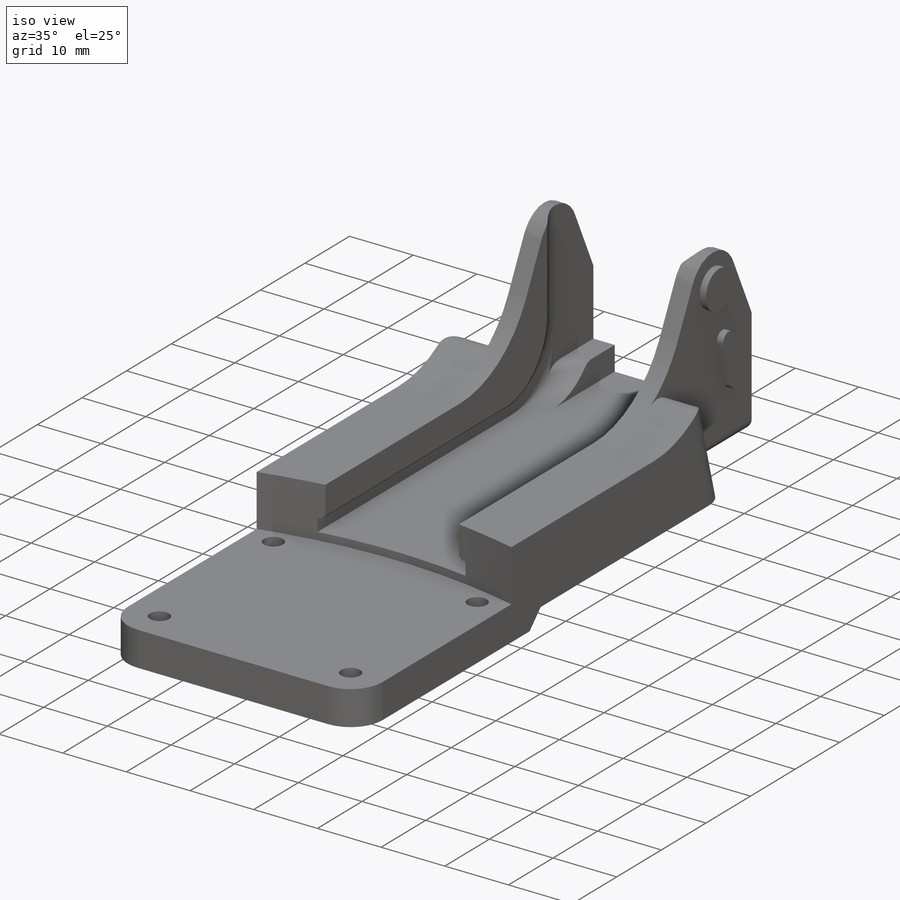
[diagram: iso view]
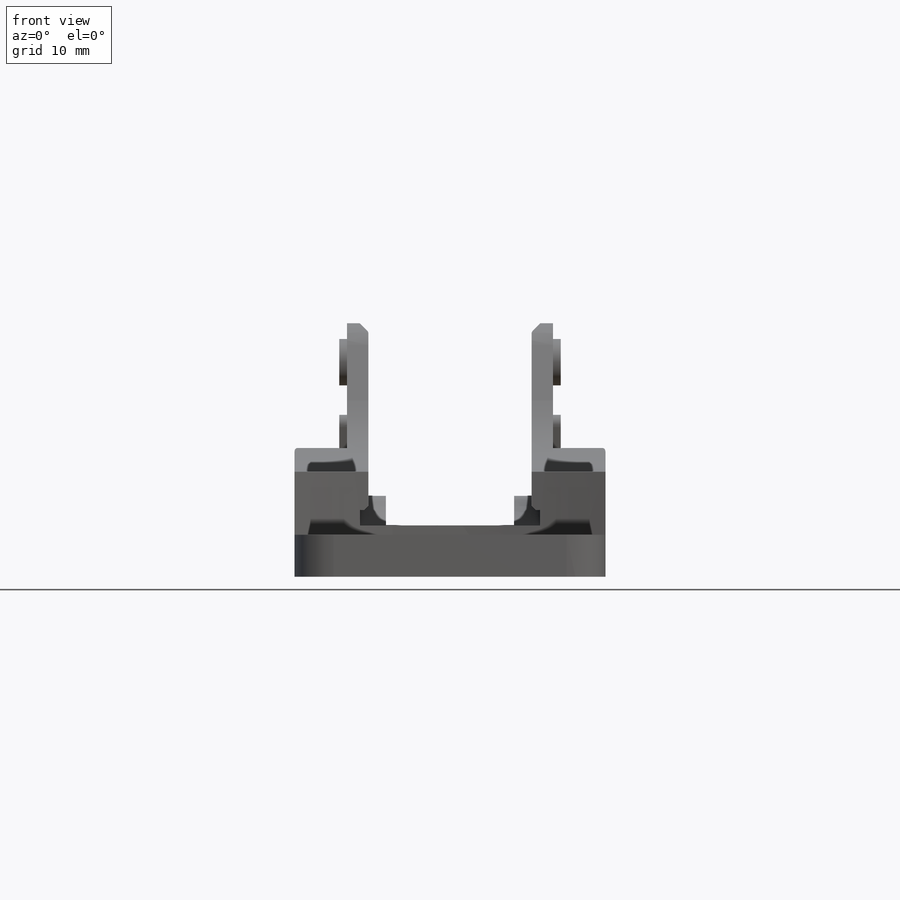
[diagram: front view]
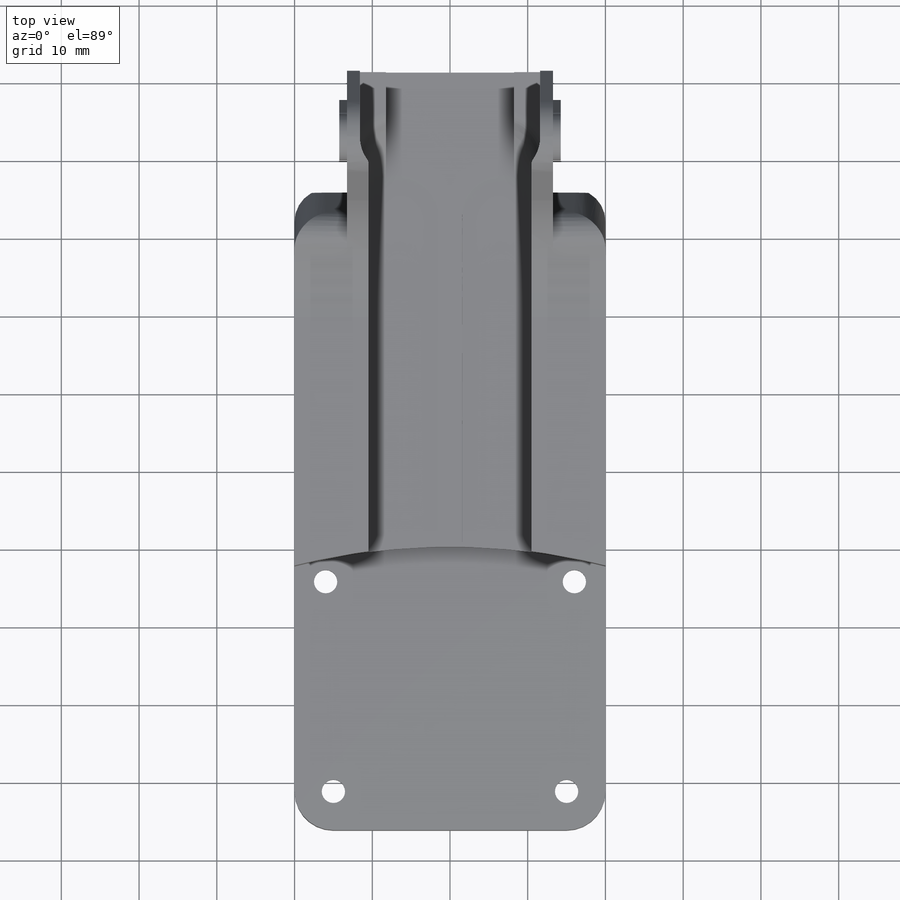
[diagram: top view]
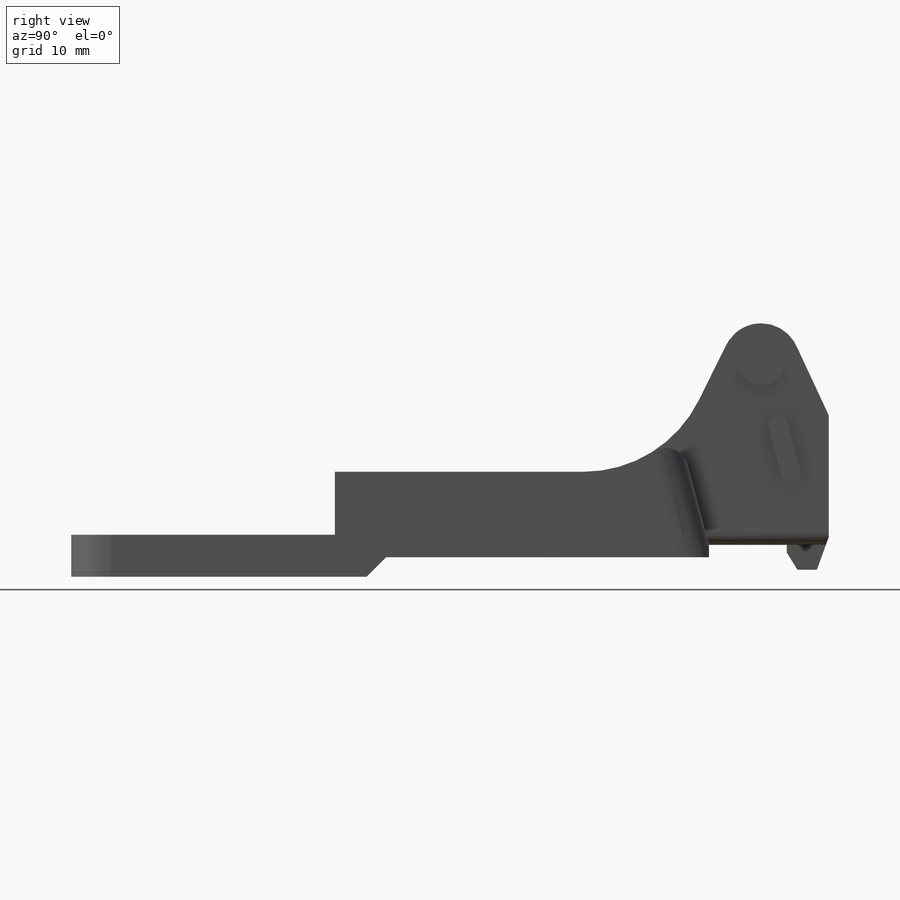
[diagram: right view]
SOLIDWORKS PART (.sldprt)
format: sldprt  version: not decoded by parser v0  size: 1,121,792 bytes
history: native  units: mm
features: sketch x18, cut_extrude x11, mirror x7, extrude x5, plane x4, chamfer x2, material x1, fillet x1, revolve x1, sweep x1 (+9 scaffold rows collapsed)
feature tree (60):
  scaffold x9  (default folders/planes/origin — collapsed)
  material  "2024-T3"
  plane  "Спереди"
  plane  "Сверху"
  plane  "Справа"
  sketch  "Эскиз1"  dims[c1.D1=~107.721627mm c1.D3=161.0mm c2.D1=40.0mm c2.D2=48.0mm c2.D3=25.8mm c2.D4=20.5mm c2.D5=24.0mm c2.D6=29.0mm c3.D2=99.0mm c3.D4=60.8mm]
  extrude  "Бобышка-Вытянуть1"  Depth=13.5mm
  sketch  "Эскиз12"  dims[D1=161.0mm D2=61.0mm]
  cut_extrude  "Вырез-Вытянуть7"  Depth=5.4mm
  sketch  "Эскиз10"  dims[D1=3.0mm]
  cut_extrude  "Вырез-Вытянуть5"  Depth=10mm
  sketch  "Эскиз11"  dims[D1=2.8mm]
  cut_extrude  "Вырез-Вытянуть6"  Depth=3mm
  sketch  "Эскиз13"  dims[c1.D4=~5.223492mm c1.D1=5.0mm c2.D4=~11.915259mm c2.D3=~2.361737mm c2.D2=6.0mm c2.D1=35.6mm c3.D2=6.6mm c3.D3=14.0mm c4.D2=32.5mm c4.D3=~4.000031mm c5.D3=~25.36966deg c6.D3=30.6mm c6.D4=~3.472133mm c7.D4=25.0deg c7.D5=8.7mm]
  extrude  "Бобышка-Вытянуть2"  [1 undecoded]
  sketch  "Эскиз14"  dims[c1.D1=~21.492484mm c2.D1=15.0deg c2.D2=14.3mm]
  cut_extrude  "Вырез-Вытянуть9"  Depth=6.75mm
  sketch  "Эскиз17"  dims[c1.D1=5.96mm c1.D2=13.0mm c1.D3=2.5mm c1.D4=~12.496402mm c2.D4=15.0deg c2.D5=31.1mm]
  extrude  "Бобышка-Вытянуть3"  Depth=1mm
  mirror  "Зеркальное отражение1"
  sketch  "Эскиз15"  dims[D1=29.6mm D2=14.0mm D3=41.0mm]
  cut_extrude  "Вырез-Вытянуть10"  Depth=2.5mm
  sketch  "Эскиз16"  dims[D1=1.6mm D2=15.4mm]
  cut_extrude  "Вырез-Вытянуть11"  [1 undecoded]
  sketch  "Эскиз18"  dims[D1=21.0mm]
  cut_extrude  "Вырез-Вытянуть12"  Depth=1.2mm
  fillet  "Скругление5"  Radius=3mm
  mirror  "Скругление1"
  mirror  "Скругление3"
  plane  "Плоскость1"
  sketch  "Эскиз24"  dims[D1=5.0mm D2=16.0mm]
  extrude  "Бобышка-Вытянуть5"  Depth=3.8mm
  sketch  "Эскиз21"  dims[c1.D1=2.0mm c1.D2=0.5mm c1.D3=0.5mm c1.D4=8.0mm c1.D5=8.0mm c2.D4=23.0mm c2.D5=5.8mm c2.D2=1.1mm c2.D3=~0.366835mm c3.D3=45.0deg c3.D5=0.5mm c4.D3=0.01mm c4.D4=10.0mm c5.D3=0.01mm]
  revolve  "Повернуть4"  Angle=360deg
  sketch  "Эскиз20"  dims[D1=10.0mm D2=43.0mm]
  sweep  "Вырез-По траектории5"
  chamfer  "Фаска1"  Distance=0.5mm Angle=45deg
  mirror  "Скругление4"
  sketch  "Эскиз22"  dims[D1=9.6mm D2=5.4mm]
  extrude  "Бобышка-Вытянуть4"  Depth=3.2mm
  sketch  "Эскиз23"  dims[c1.D1=3.2mm c2.D1=20.0deg c2.D2=3.2mm c3.D2=20.0deg c4.D2=2.5mm c4.D3=3.2mm c5.D3=~32.457575deg c6.D3=1.0mm c6.D4=2.2mm c7.D4=~42.772969deg c8.D4=2.2mm c9.D4=~31.936507deg c9.D5=1.0mm]
  cut_extrude  "Вырез-Вытянуть13"  [1 undecoded]
  chamfer  "Фаска2"  Distance=3mm Angle=45deg
  mirror  "Скругление6"
  sketch  "Эскиз25"  dims[D1=0.0mm]
  cut_extrude  "Вырез-Вытянуть14"  [1 undecoded]
  mirror  "Скругление7"
  sketch  "Эскиз27"
  cut_extrude  "Вырез-Вытянуть16"  [1 undecoded]
  mirror  "Зеркальное отражение9"
  sketch  "Эскиз28"
  cut_extrude  "Вырез-Вытянуть17"  Depth=0.2mm
decode coverage: 31 of 46 modeling features carry decoded parameters
note: ~ marks probable driven/reference dimensions
note: 5 parameter values undecoded
summary: no parameter record found for 5 features
note: suppression state not decoded; provenance and decode notes live in map.json
